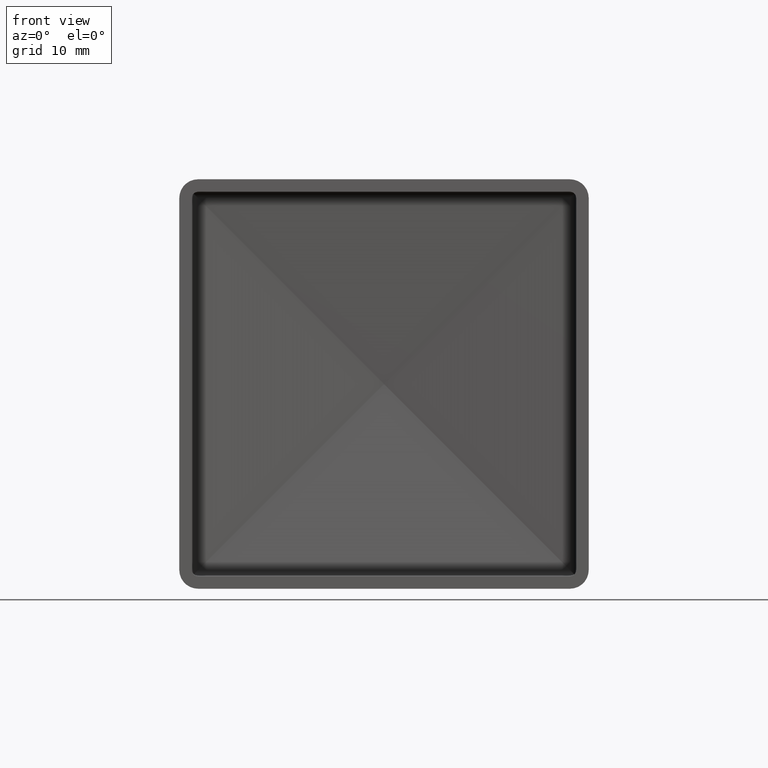
[diagram: clean part render]
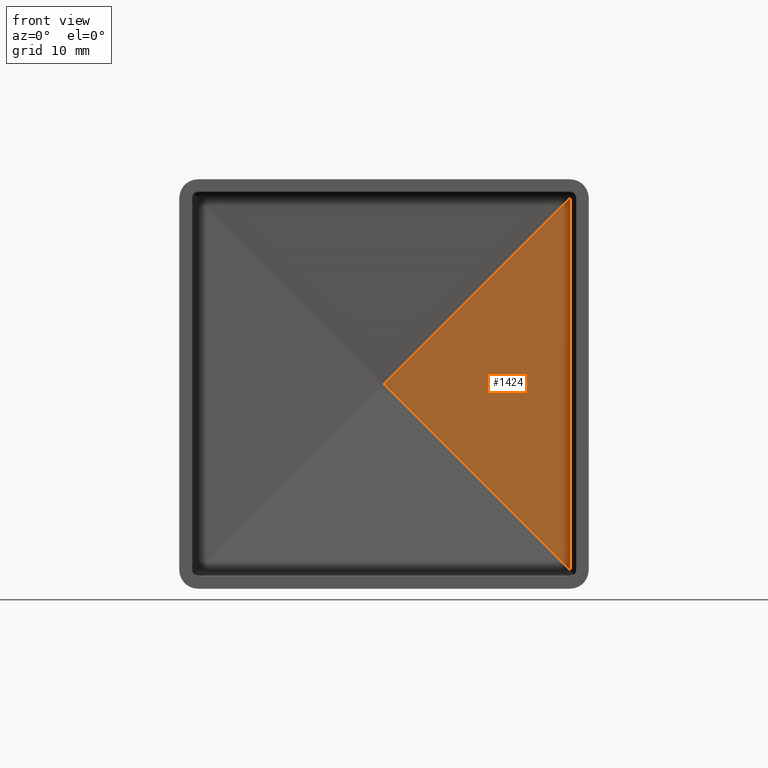
[diagram: same view with one face highlighted and labeled with its STEP entity id]
A machine part, front view. The second image highlights one B-rep face of the part: STEP entity #1424.
In plain terms, the highlighted planar face has unit normal (-0.0837, -0.9965, 0).
Its self-contained STEP definition (entity closure, byte-faithful):
#247 = ORIENTED_EDGE ( 'NONE', *, *, #5997, .F. ) ;
#1210 = LINE ( 'NONE', #16915, #3873 ) ;
#1386 = CARTESIAN_POINT ( 'NONE',  ( 0.8347376964483678200, 9.933378587735559200, -32.75000000000000000 ) ) ;
#1424 = ADVANCED_FACE ( 'NONE', ( #10124 ), #9264, .T. ) ;
#1644 = CARTESIAN_POINT ( 'NONE',  ( 29.83373846778272700, 7.496487766615021400, 29.83373846778273400 ) ) ;
#2312 = ORIENTED_EDGE ( 'NONE', *, *, #14990, .T. ) ;
#2823 = DIRECTION ( 'NONE',  ( -0.0000000000000000000, 0.0000000000000000000, 1.000000000000000000 ) ) ;
#3673 = VECTOR ( 'NONE', #6983, 1000.000000000000100 ) ;
#3873 = VECTOR ( 'NONE', #15652, 1000.000000000000100 ) ;
#4979 = VECTOR ( 'NONE', #14258, 1000.000000000000000 ) ;
#5072 = ORIENTED_EDGE ( 'NONE', *, *, #5493, .T. ) ;
#5493 = EDGE_CURVE ( 'NONE', #11518, #11263, #1210, .T. ) ;
#5908 = CARTESIAN_POINT ( 'NONE',  ( 29.83373846778275900, 7.496487766615021400, -29.83373846778274100 ) ) ;
#5997 = EDGE_CURVE ( 'NONE', #11191, #10055, #7603, .T. ) ;
#6983 = DIRECTION ( 'NONE',  ( 0.7058617423977314700, -0.05931611280653216500, 0.7058617423977314700 ) ) ;
#7094 = DIRECTION ( 'NONE',  ( 0.9964877666150213600, -0.08373846778277505000, 0.0000000000000000000 ) ) ;
#7168 = EDGE_CURVE ( 'NONE', #11518, #11191, #9849, .T. ) ;
#7177 = AXIS2_PLACEMENT_3D ( 'NONE', #1386, #8319, #7094 ) ;
#7344 = EDGE_LOOP ( 'NONE', ( #5072, #2312, #247, #11208 ) ) ;
#7603 = LINE ( 'NONE', #9404, #3673 ) ;
#7863 = LINE ( 'NONE', #12901, #4979 ) ;
#8319 = DIRECTION ( 'NONE',  ( -0.08373846778277505000, -0.9964877666150213600, 0.0000000000000000000 ) ) ;
#9264 = PLANE ( 'NONE',  #7177 ) ;
#9277 = CARTESIAN_POINT ( 'NONE',  ( 0.08373846778276887400, 9.996487766615022300, -32.75000000000000000 ) ) ;
#9404 = CARTESIAN_POINT ( 'NONE',  ( -15.89854886042325600, 11.33953712192645500, -15.89854886042326000 ) ) ;
#9849 = LINE ( 'NONE', #9277, #14543 ) ;
#10055 = VERTEX_POINT ( 'NONE', #1644 ) ;
#10124 = FACE_OUTER_BOUND ( 'NONE', #7344, .T. ) ;
#11191 = VERTEX_POINT ( 'NONE', #13695 ) ;
#11208 = ORIENTED_EDGE ( 'NONE', *, *, #7168, .F. ) ;
#11263 = VERTEX_POINT ( 'NONE', #5908 ) ;
#11518 = VERTEX_POINT ( 'NONE', #14092 ) ;
#12901 = CARTESIAN_POINT ( 'NONE',  ( 29.83373846778274400, 7.496487766615022300, -32.75000000000000000 ) ) ;
#13695 = CARTESIAN_POINT ( 'NONE',  ( 0.08373846778278215600, 9.996487766615020500, 0.08373846778277765900 ) ) ;
#14092 = CARTESIAN_POINT ( 'NONE',  ( 0.08373846778277191400, 9.996487766615022300, -0.08373846778277446700 ) ) ;
#14258 = DIRECTION ( 'NONE',  ( -0.0000000000000000000, -0.0000000000000000000, 1.000000000000000000 ) ) ;
#14543 = VECTOR ( 'NONE', #2823, 1000.000000000000000 ) ;
#14990 = EDGE_CURVE ( 'NONE', #11263, #10055, #7863, .T. ) ;
#15652 = DIRECTION ( 'NONE',  ( 0.7058617423977313600, -0.05931611280653214400, -0.7058617423977315800 ) ) ;
#16915 = CARTESIAN_POINT ( 'NONE',  ( 16.73622349901661400, 8.597119276595368100, -16.73622349901661700 ) ) ;